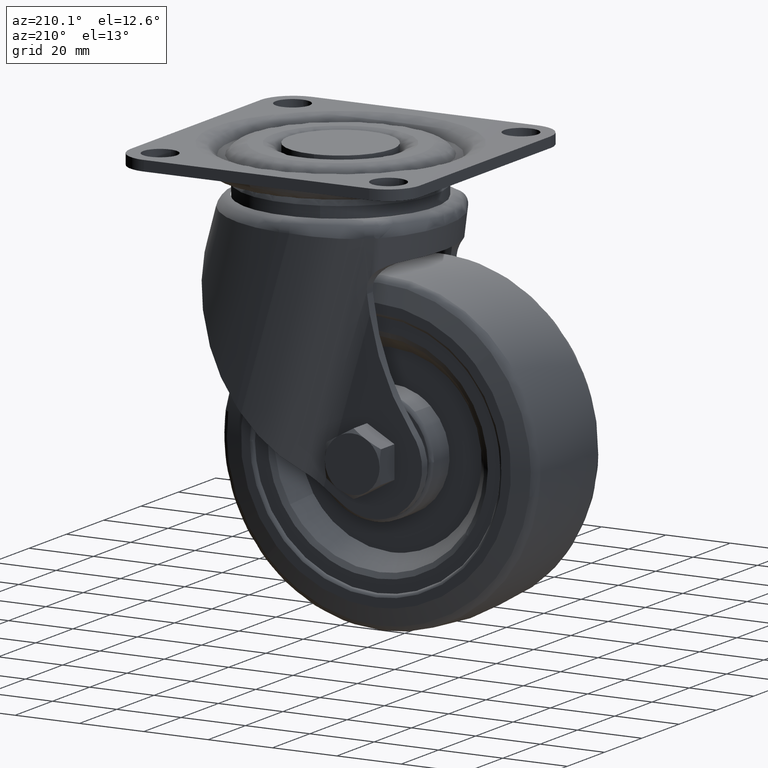
[diagram: clean part render]
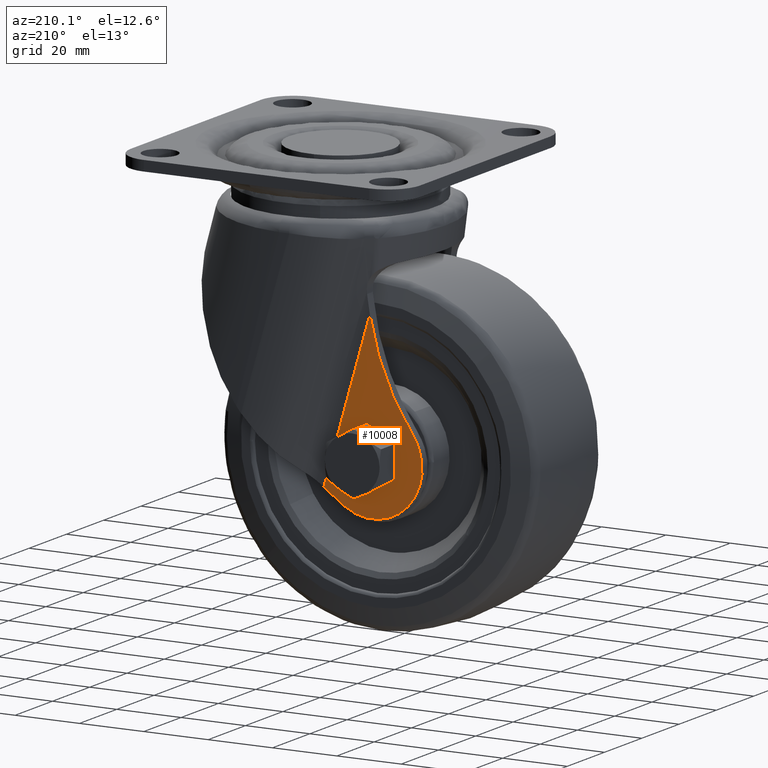
[diagram: same view with one face highlighted and labeled with its STEP entity id]
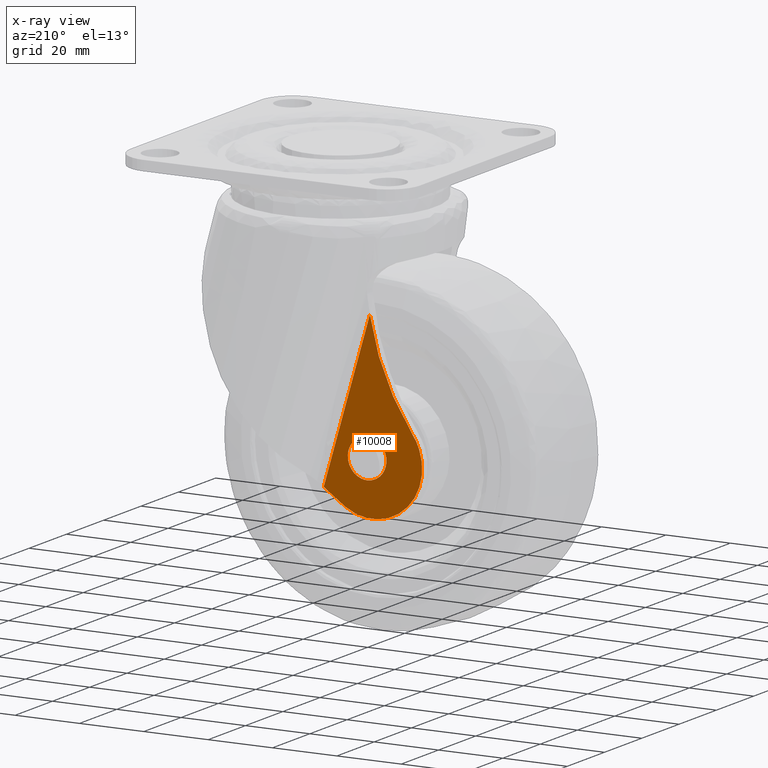
[diagram: x-ray of the same camera — body ghosted, the highlighted face saturated]
A machine part, auxiliary view. The second image highlights one B-rep face of the part: STEP entity #10008.
The next image is the same camera in x-ray: the body ghosted, the highlighted face saturated — about 0% of this face is hidden behind the body in this view.
In plain terms, the highlighted face is a freeform B-spline surface patch.
Its self-contained STEP definition (entity closure, byte-faithful):
#8863=CARTESIAN_POINT('',(-27.991473175710080,23.699999999999999,-80.471739165654981));
#8864=VERTEX_POINT('',#8863);
#8870=CARTESIAN_POINT('',(-22.0,23.699999999999999,-73.990199999999987));
#8871=VERTEX_POINT('',#8870);
#8872=CARTESIAN_POINT('',(-27.991473175710087,23.699999999999999,-80.471739165654995));
#8873=CARTESIAN_POINT('',(-28.010000000000002,23.700000000000003,-80.236333543282186));
#8874=CARTESIAN_POINT('',(-28.010000000000002,23.699999999999999,-80.000199999999992));
#8875=CARTESIAN_POINT('',(-28.010000000000002,23.700000000000003,-73.990199999999987));
#8876=CARTESIAN_POINT('',(-22.0,23.699999999999999,-73.990199999999987));
#8884=(BOUNDED_CURVE()B_SPLINE_CURVE(2,(#8872,#8873,#8874,#8875,#8876),.UNSPECIFIED.,.F.,.U.)B_SPLINE_CURVE_WITH_KNOTS((3,2,3),(0.736331300623307,0.750000000000000,1.0),.UNSPECIFIED.)CURVE()GEOMETRIC_REPRESENTATION_ITEM()RATIONAL_B_SPLINE_CURVE((0.969723356152073,0.983986122570267,1.0,0.707106781186548,1.0))REPRESENTATION_ITEM(''));
#8885=EDGE_CURVE('',#8864,#8871,#8884,.T.);
#8887=CARTESIAN_POINT('',(-16.008526824289920,23.699999999999999,-79.528660834345004));
#8888=VERTEX_POINT('',#8887);
#8889=CARTESIAN_POINT('',(-22.0,23.699999999999999,-73.990199999999987));
#8890=CARTESIAN_POINT('',(-16.444413145441690,23.699999999999992,-73.990199999999987));
#8891=CARTESIAN_POINT('',(-16.008526824289920,23.700000000000003,-79.528660834345018));
#8899=(BOUNDED_CURVE()B_SPLINE_CURVE(2,(#8889,#8890,#8891),.UNSPECIFIED.,.F.,.U.)B_SPLINE_CURVE_WITH_KNOTS((3,3),(0.0,0.236331300623307),.UNSPECIFIED.)CURVE()GEOMETRIC_REPRESENTATION_ITEM()RATIONAL_B_SPLINE_CURVE((1.0,0.723120658616280,0.969723356152074))REPRESENTATION_ITEM(''));
#8900=EDGE_CURVE('',#8871,#8888,#8899,.T.);
#8946=CARTESIAN_POINT('',(-22.0,23.699999999999999,-86.010199999999998));
#8947=VERTEX_POINT('',#8946);
#8948=CARTESIAN_POINT('',(-16.008526824289927,23.699999999999999,-79.528660834345004));
#8949=CARTESIAN_POINT('',(-15.989999999999993,23.700000000000003,-79.764066456717799));
#8950=CARTESIAN_POINT('',(-15.990000000000000,23.699999999999999,-80.000199999999992));
#8951=CARTESIAN_POINT('',(-15.990000000000007,23.700000000000003,-86.010199999999998));
#8952=CARTESIAN_POINT('',(-22.0,23.699999999999999,-86.010199999999998));
#8960=(BOUNDED_CURVE()B_SPLINE_CURVE(2,(#8948,#8949,#8950,#8951,#8952),.UNSPECIFIED.,.F.,.U.)B_SPLINE_CURVE_WITH_KNOTS((3,2,3),(0.236331300623307,0.250000000000000,0.500000000000000),.UNSPECIFIED.)CURVE()GEOMETRIC_REPRESENTATION_ITEM()RATIONAL_B_SPLINE_CURVE((0.969723356152073,0.983986122570267,1.0,0.707106781186548,1.0))REPRESENTATION_ITEM(''));
#8961=EDGE_CURVE('',#8888,#8947,#8960,.T.);
#8963=CARTESIAN_POINT('',(-22.0,23.699999999999999,-86.010199999999998));
#8964=CARTESIAN_POINT('',(-27.555586854558296,23.699999999999992,-86.010199999999998));
#8965=CARTESIAN_POINT('',(-27.991473175710084,23.699999999999999,-80.471739165654995));
#8973=(BOUNDED_CURVE()B_SPLINE_CURVE(2,(#8963,#8964,#8965),.UNSPECIFIED.,.F.,.U.)B_SPLINE_CURVE_WITH_KNOTS((3,3),(0.500000000000000,0.736331300623307),.UNSPECIFIED.)CURVE()GEOMETRIC_REPRESENTATION_ITEM()RATIONAL_B_SPLINE_CURVE((1.0,0.723120658616280,0.969723356152073))REPRESENTATION_ITEM(''));
#8974=EDGE_CURVE('',#8947,#8864,#8973,.T.);
#9605=CARTESIAN_POINT('',(-22.848104331939549,23.699999999999999,-40.233395826008397));
#9606=VERTEX_POINT('',#9605);
#9616=CARTESIAN_POINT('',(-36.138694771212847,23.699999999999999,-71.887857911865112));
#9617=VERTEX_POINT('',#9616);
#9618=CARTESIAN_POINT('',(-22.848104331939521,23.699999999999999,-40.233395826008412));
#9619=CARTESIAN_POINT('',(-25.772148349685477,23.700000000000003,-57.623048795799349));
#9620=CARTESIAN_POINT('',(-36.138695005206692,23.699999999999999,-71.887857741816688));
#9628=(BOUNDED_CURVE()B_SPLINE_CURVE(2,(#9618,#9619,#9620),.UNSPECIFIED.,.F.,.U.)CURVE()GEOMETRIC_REPRESENTATION_ITEM()QUASI_UNIFORM_CURVE()RATIONAL_B_SPLINE_CURVE((1.0,0.973455591417076,1.0))REPRESENTATION_ITEM(''));
#9629=EDGE_CURVE('',#9606,#9617,#9628,.T.);
#9750=CARTESIAN_POINT('',(-15.154456622378950,23.699999999999999,-93.997029754928505));
#9751=VERTEX_POINT('',#9750);
#9783=CARTESIAN_POINT('',(-15.154456622378950,23.699999999999999,-93.997029754928505));
#9784=CARTESIAN_POINT('',(-15.858960082589990,23.700000000000021,-94.454893110314742));
#9785=CARTESIAN_POINT('',(-17.293233349703470,23.699999999999989,-95.228918291066549));
#9786=CARTESIAN_POINT('',(-19.307351392479269,23.699999999999989,-95.936232608934972));
#9787=CARTESIAN_POINT('',(-21.280680590390570,23.699999999999950,-96.363111007619651));
#9788=CARTESIAN_POINT('',(-23.069743493958200,23.700000000000170,-96.531386302696205));
#9789=CARTESIAN_POINT('',(-25.256540563988331,23.699999999999591,-96.463849302980492));
#9790=CARTESIAN_POINT('',(-27.361674668540520,23.700000000000468,-96.098499911563650));
#9791=CARTESIAN_POINT('',(-29.650173695563769,23.699999999999289,-95.330897370498263));
#9792=CARTESIAN_POINT('',(-31.504138619239111,23.700000000000198,-94.389162064941132));
#9793=CARTESIAN_POINT('',(-33.210711246827373,23.699999999999939,-93.207730515985119));
#9794=CARTESIAN_POINT('',(-34.849744186468399,23.700000000000038,-91.756441038535058));
#9795=CARTESIAN_POINT('',(-36.244220880347989,23.700000000000010,-90.062802894116231));
#9796=CARTESIAN_POINT('',(-37.373573624864690,23.699999999999971,-88.189034241596374));
#9797=CARTESIAN_POINT('',(-38.342052378582380,23.700000000000021,-86.039482166713128));
#9798=CARTESIAN_POINT('',(-39.024368633823663,23.699999999999971,-83.364219765374614));
#9799=CARTESIAN_POINT('',(-39.179215084381319,23.700000000000038,-80.217763886309584));
#9800=CARTESIAN_POINT('',(-38.810537575369452,23.699999999999921,-77.710644039875774));
#9801=CARTESIAN_POINT('',(-37.922069293681140,23.700000000000330,-74.815420670911323));
#9802=CARTESIAN_POINT('',(-36.995400415153632,23.699999999999498,-73.065727582802367));
#9803=CARTESIAN_POINT('',(-36.138694771212847,23.699999999999999,-71.887857911865112));
#9804=B_SPLINE_CURVE_WITH_KNOTS('',3,(#9783,#9784,#9785,#9786,#9787,#9788,#9789,#9790,#9791,#9792,#9793,#9794,#9795,#9796,#9797,#9798,#9799,#9800,#9801,#9802,#9803),.UNSPECIFIED.,.F.,.U.,(4,1,1,1,1,1,1,1,1,1,1,1,1,1,1,1,1,1,4),(0.000000066070278,2.520650785488520,4.873303867357507,6.385752125133891,8.570372181532356,10.250861755444920,12.939624569000729,14.956211671078290,17.476940491060510,19.157407491570741,21.173931584673340,24.030702707982080,25.711165981402200,27.727693809740511,31.088668078023851,33.945490987339632,37.138391636603899,38.650822229794286,43.020006741540193),.UNSPECIFIED.);
#9805=EDGE_CURVE('',#9751,#9617,#9804,.T.);
#9973=CARTESIAN_POINT('',(-40.625356648722509,23.699999999999999,-99.306878779633351));
#9974=CARTESIAN_POINT('',(-40.625356648722509,23.699999999999999,-37.423050620085299));
#9975=CARTESIAN_POINT('',(-6.974238617373391,23.699999999999999,-99.306878779633351));
#9976=CARTESIAN_POINT('',(-6.974238617373391,23.699999999999999,-37.423050620085299));
#9977=B_SPLINE_SURFACE_WITH_KNOTS('',1,1,((#9973,#9975),(#9974,#9976)),.UNSPECIFIED.,.F.,.F.,.U.,(2,2),(2,2),(0.0,61.883828159548052),(0.0,33.651118031349107),.UNSPECIFIED.);
#9978=ORIENTED_EDGE('',*,*,#9629,.F.);
#9979=CARTESIAN_POINT('',(-8.502444951745570,23.699999999999999,-89.341379131609301));
#9980=VERTEX_POINT('',#9979);
#9981=CARTESIAN_POINT('',(-22.848104331939549,23.699999999999999,-40.233395826008397));
#9982=CARTESIAN_POINT('',(-8.502444951745570,23.699999999999999,-89.341379131609301));
#9983=QUASI_UNIFORM_CURVE('',1,(#9981,#9982),.UNSPECIFIED.,.F.,.U.);
#9984=EDGE_CURVE('',#9606,#9980,#9983,.T.);
#9985=ORIENTED_EDGE('',*,*,#9984,.T.);
#9986=CARTESIAN_POINT('',(-8.502444951745556,23.699999999999999,-89.341379131609344));
#9987=CARTESIAN_POINT('',(-11.748316484264164,23.699999999999999,-91.783700645960579));
#9988=CARTESIAN_POINT('',(-15.154456622378980,23.699999999999999,-93.997029754928477));
#9996=(BOUNDED_CURVE()B_SPLINE_CURVE(2,(#9986,#9987,#9988),.UNSPECIFIED.,.F.,.U.)CURVE()GEOMETRIC_REPRESENTATION_ITEM()QUASI_UNIFORM_CURVE()RATIONAL_B_SPLINE_CURVE((1.0,0.999408001819559,1.0))REPRESENTATION_ITEM(''));
#9997=EDGE_CURVE('',#9980,#9751,#9996,.T.);
#9998=ORIENTED_EDGE('',*,*,#9997,.T.);
#9999=ORIENTED_EDGE('',*,*,#9805,.T.);
#10000=EDGE_LOOP('',(#9978,#9985,#9998,#9999));
#10001=FACE_OUTER_BOUND('',#10000,.T.);
#10002=ORIENTED_EDGE('',*,*,#8974,.F.);
#10003=ORIENTED_EDGE('',*,*,#8961,.F.);
#10004=ORIENTED_EDGE('',*,*,#8900,.F.);
#10005=ORIENTED_EDGE('',*,*,#8885,.F.);
#10006=EDGE_LOOP('',(#10002,#10003,#10004,#10005));
#10007=FACE_BOUND('',#10006,.T.);
#10008=ADVANCED_FACE('',(#10001,#10007),#9977,.T.);